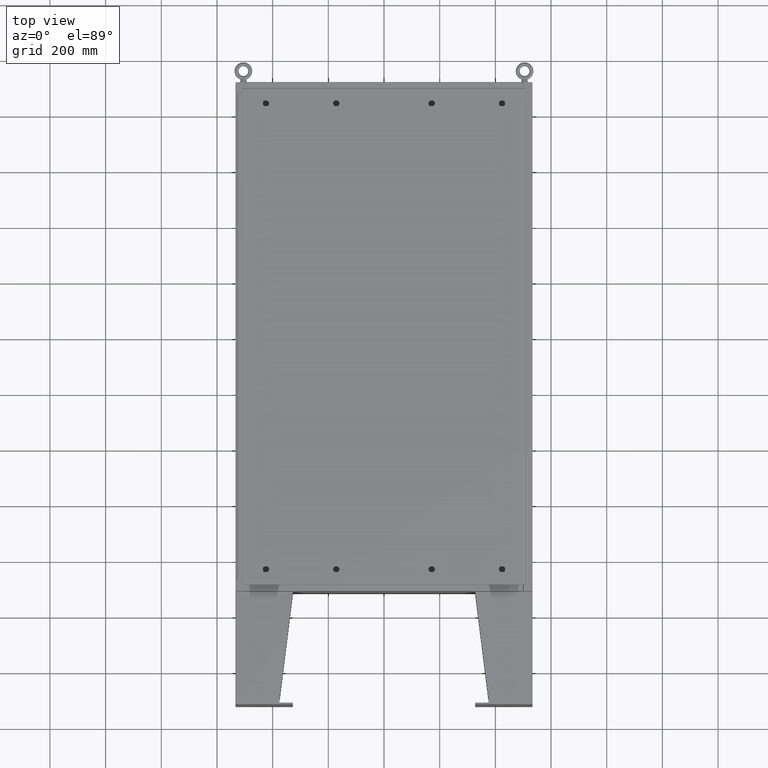
[diagram: clean part render]
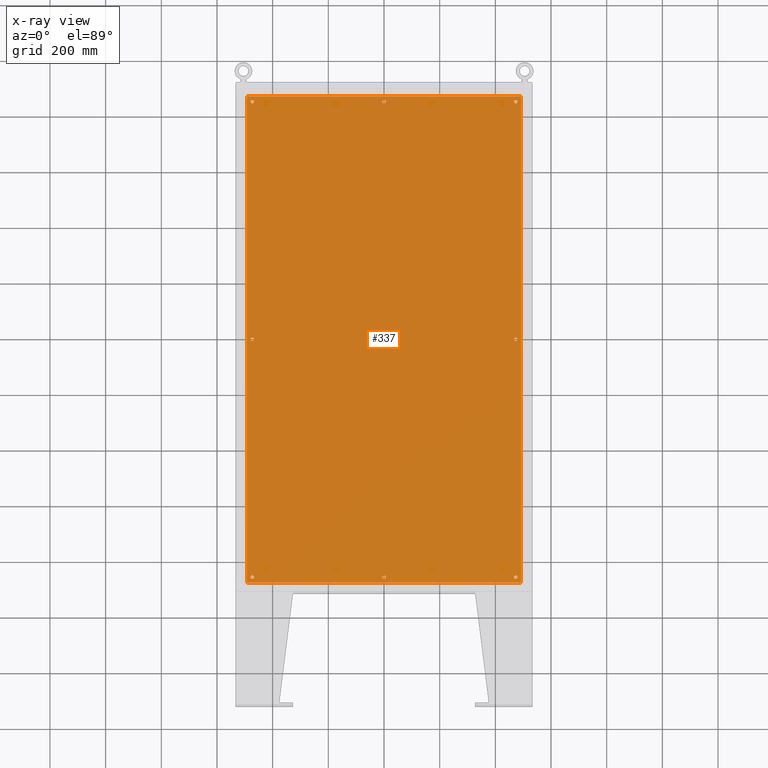
[diagram: x-ray — body ghosted, one internal face saturated and labeled with its STEP entity id]
A machine part, top view, then the same camera in x-ray: the body is ghosted and one INTERNAL B-rep face — a face not visible from any outside direction — is saturated and labeled: STEP entity #337.
In plain terms, the highlighted planar face has unit normal (0, 0, -1).
Its self-contained STEP definition (entity closure, byte-faithful):
#210 = DIRECTION ( 'NONE',  ( -0.0000000000000000000, -0.0000000000000000000, 1.000000000000000000 ) ) ;
#337 = ADVANCED_FACE ( 'NONE', ( #3136, #59577, #17625, #30404, #15894, #4846, #1402, #57837, #43306 ), #21735, .T. ) ;
#560 = EDGE_CURVE ( 'NONE', #31139, #26514, #35565, .T. ) ;
#753 = CARTESIAN_POINT ( 'NONE',  ( -18.87500000000000400, -33.62500000000000000, -0.1039999999999999800 ) ) ;
#1402 = FACE_BOUND ( 'NONE', #1783, .T. ) ;
#1491 = AXIS2_PLACEMENT_3D ( 'NONE', #31991, #70581, #37505 ) ;
#1529 = DIRECTION ( 'NONE',  ( -1.000000000000000000, 0.0000000000000000000, 0.0000000000000000000 ) ) ;
#1604 = DIRECTION ( 'NONE',  ( -1.000000000000000000, 0.0000000000000000000, 0.0000000000000000000 ) ) ;
#1783 = EDGE_LOOP ( 'NONE', ( #40355, #32800 ) ) ;
#1819 = ORIENTED_EDGE ( 'NONE', *, *, #11735, .T. ) ;
#2083 = VERTEX_POINT ( 'NONE', #55377 ) ;
#2174 = DIRECTION ( 'NONE',  ( -1.000000000000000000, 0.0000000000000000000, 0.0000000000000000000 ) ) ;
#3136 = FACE_BOUND ( 'NONE', #46908, .T. ) ;
#3148 = CARTESIAN_POINT ( 'NONE',  ( 18.62500000000000400, 3.731924441611933200E-015, -0.1039999999999999800 ) ) ;
#4038 = AXIS2_PLACEMENT_3D ( 'NONE', #52953, #20166, #58510 ) ;
#4846 = FACE_BOUND ( 'NONE', #34965, .T. ) ;
#5057 = EDGE_CURVE ( 'NONE', #63131, #35624, #30499, .T. ) ;
#5108 = EDGE_CURVE ( 'NONE', #50142, #2083, #54480, .T. ) ;
#5337 = CARTESIAN_POINT ( 'NONE',  ( 0.0000000000000000000, -33.62500000000000000, -0.1039999999999999800 ) ) ;
#6278 = CARTESIAN_POINT ( 'NONE',  ( -18.87500000000001100, 33.62500000000000000, -0.1039999999999999800 ) ) ;
#7345 = AXIS2_PLACEMENT_3D ( 'NONE', #40218, #63879, #1529 ) ;
#8387 = DIRECTION ( 'NONE',  ( -0.0000000000000000000, -0.0000000000000000000, 1.000000000000000000 ) ) ;
#9155 = CIRCLE ( 'NONE', #24565, 0.2500000000000008900 ) ;
#9239 = AXIS2_PLACEMENT_3D ( 'NONE', #13493, #51720, #18975 ) ;
#9494 = CARTESIAN_POINT ( 'NONE',  ( -19.38300000000000300, 34.38300000000000300, -0.1040000000000052800 ) ) ;
#10170 = EDGE_LOOP ( 'NONE', ( #12227, #42961 ) ) ;
#10752 = CARTESIAN_POINT ( 'NONE',  ( -18.37500000000000700, 33.62500000000000000, -0.1039999999999999800 ) ) ;
#11735 = EDGE_CURVE ( 'NONE', #23462, #13488, #43729, .T. ) ;
#12227 = ORIENTED_EDGE ( 'NONE', *, *, #34272, .T. ) ;
#12734 = VECTOR ( 'NONE', #49976, 39.37007874015748100 ) ;
#13044 = CIRCLE ( 'NONE', #37695, 0.2500000000000011700 ) ;
#13059 = CARTESIAN_POINT ( 'NONE',  ( 18.87500000000000400, -33.62500000000000000, -0.1039999999999999800 ) ) ;
#13485 = VERTEX_POINT ( 'NONE', #9494 ) ;
#13488 = VERTEX_POINT ( 'NONE', #19115 ) ;
#13493 = CARTESIAN_POINT ( 'NONE',  ( 18.62500000000000700, 33.62500000000000000, -0.1039999999999999800 ) ) ;
#13996 = EDGE_LOOP ( 'NONE', ( #1819, #32123 ) ) ;
#14427 = LINE ( 'NONE', #17246, #12734 ) ;
#14484 = AXIS2_PLACEMENT_3D ( 'NONE', #3148, #210, #33091 ) ;
#14925 = ORIENTED_EDGE ( 'NONE', *, *, #15774, .T. ) ;
#15071 = AXIS2_PLACEMENT_3D ( 'NONE', #47828, #15081, #53353 ) ;
#15081 = DIRECTION ( 'NONE',  ( -0.0000000000000000000, -0.0000000000000000000, 1.000000000000000000 ) ) ;
#15238 = AXIS2_PLACEMENT_3D ( 'NONE', #24956, #63449, #30497 ) ;
#15774 = EDGE_CURVE ( 'NONE', #35624, #63131, #13044, .T. ) ;
#15894 = FACE_BOUND ( 'NONE', #10170, .T. ) ;
#17246 = CARTESIAN_POINT ( 'NONE',  ( -19.50000000000000000, -34.38300000000000300, -0.1040000000000009400 ) ) ;
#17574 = CARTESIAN_POINT ( 'NONE',  ( 19.38299999999999900, 34.38300000000000300, -0.1040000000000009100 ) ) ;
#17612 = AXIS2_PLACEMENT_3D ( 'NONE', #27514, #64431, #2174 ) ;
#17625 = FACE_BOUND ( 'NONE', #13996, .T. ) ;
#18098 = CARTESIAN_POINT ( 'NONE',  ( 18.87500000000000400, 3.731924441611933200E-015, -0.1039999999999999800 ) ) ;
#18471 = CARTESIAN_POINT ( 'NONE',  ( -18.62500000000000700, 33.62500000000000000, -0.1039999999999999800 ) ) ;
#18952 = AXIS2_PLACEMENT_3D ( 'NONE', #70858, #34716, #30411 ) ;
#18975 = DIRECTION ( 'NONE',  ( -1.000000000000000000, 0.0000000000000000000, 0.0000000000000000000 ) ) ;
#19079 = CARTESIAN_POINT ( 'NONE',  ( 19.50000000000000000, 34.38299999999999600, -0.1040000000000009400 ) ) ;
#19115 = CARTESIAN_POINT ( 'NONE',  ( 18.37500000000000400, 3.762540611590617000E-015, -0.1039999999999999800 ) ) ;
#20166 = DIRECTION ( 'NONE',  ( -0.0000000000000000000, -0.0000000000000000000, 1.000000000000000000 ) ) ;
#20243 = DIRECTION ( 'NONE',  ( -0.0000000000000000000, -0.0000000000000000000, 1.000000000000000000 ) ) ;
#20339 = AXIS2_PLACEMENT_3D ( 'NONE', #28714, #67325, #34275 ) ;
#20742 = CIRCLE ( 'NONE', #1491, 0.2499999999999998600 ) ;
#20826 = CIRCLE ( 'NONE', #20339, 0.2500000000000008900 ) ;
#21389 = EDGE_CURVE ( 'NONE', #2083, #50142, #30296, .T. ) ;
#21735 = PLANE ( 'NONE',  #18952 ) ;
#21899 = ORIENTED_EDGE ( 'NONE', *, *, #55541, .T. ) ;
#22193 = EDGE_LOOP ( 'NONE', ( #60784, #28400, #60880, #43484 ) ) ;
#22250 = EDGE_CURVE ( 'NONE', #49748, #63739, #49855, .T. ) ;
#22430 = VERTEX_POINT ( 'NONE', #753 ) ;
#23462 = VERTEX_POINT ( 'NONE', #18098 ) ;
#23855 = DIRECTION ( 'NONE',  ( -1.000000000000000000, 0.0000000000000000000, 0.0000000000000000000 ) ) ;
#24083 = LINE ( 'NONE', #19079, #64571 ) ;
#24565 = AXIS2_PLACEMENT_3D ( 'NONE', #18471, #56725, #23855 ) ;
#24691 = CIRCLE ( 'NONE', #36649, 0.2500000000000008900 ) ;
#24956 = CARTESIAN_POINT ( 'NONE',  ( -18.62500000000000700, -33.62500000000000000, -0.1039999999999999800 ) ) ;
#26065 = VERTEX_POINT ( 'NONE', #6278 ) ;
#26514 = VERTEX_POINT ( 'NONE', #63945 ) ;
#27254 = AXIS2_PLACEMENT_3D ( 'NONE', #67378, #34326, #1604 ) ;
#27514 = CARTESIAN_POINT ( 'NONE',  ( -18.62500000000000400, -8.298848852119578500E-016, -0.1039999999999999800 ) ) ;
#28400 = ORIENTED_EDGE ( 'NONE', *, *, #48575, .F. ) ;
#28633 = CARTESIAN_POINT ( 'NONE',  ( 0.2500000000000011700, -33.62500000000000000, -0.1039999999999999800 ) ) ;
#28714 = CARTESIAN_POINT ( 'NONE',  ( -18.62500000000000400, -8.298848852119578500E-016, -0.1039999999999999800 ) ) ;
#30021 = ORIENTED_EDGE ( 'NONE', *, *, #21389, .T. ) ;
#30296 = CIRCLE ( 'NONE', #50707, 0.2499999999999987000 ) ;
#30404 = FACE_BOUND ( 'NONE', #64908, .T. ) ;
#30411 = DIRECTION ( 'NONE',  ( -1.000000000000000000, 0.0000000000000000000, -0.0000000000000000000 ) ) ;
#30497 = DIRECTION ( 'NONE',  ( -1.000000000000000000, 0.0000000000000000000, 0.0000000000000000000 ) ) ;
#30499 = CIRCLE ( 'NONE', #63787, 0.2500000000000011700 ) ;
#30882 = ORIENTED_EDGE ( 'NONE', *, *, #66239, .T. ) ;
#30891 = CIRCLE ( 'NONE', #51713, 0.2500000000000008900 ) ;
#31139 = VERTEX_POINT ( 'NONE', #46041 ) ;
#31615 = ORIENTED_EDGE ( 'NONE', *, *, #560, .T. ) ;
#31991 = CARTESIAN_POINT ( 'NONE',  ( 0.0000000000000000000, 33.62500000000000000, -0.1039999999999999800 ) ) ;
#32123 = ORIENTED_EDGE ( 'NONE', *, *, #58126, .T. ) ;
#32800 = ORIENTED_EDGE ( 'NONE', *, *, #36304, .T. ) ;
#33091 = DIRECTION ( 'NONE',  ( -1.000000000000000000, 0.0000000000000000000, 0.0000000000000000000 ) ) ;
#33100 = EDGE_CURVE ( 'NONE', #63739, #13485, #24083, .T. ) ;
#34272 = EDGE_CURVE ( 'NONE', #43471, #22430, #47966, .T. ) ;
#34275 = DIRECTION ( 'NONE',  ( -1.000000000000000000, 0.0000000000000000000, 0.0000000000000000000 ) ) ;
#34326 = DIRECTION ( 'NONE',  ( -0.0000000000000000000, -0.0000000000000000000, 1.000000000000000000 ) ) ;
#34716 = DIRECTION ( 'NONE',  ( 0.0000000000000000000, 0.0000000000000000000, -1.000000000000000000 ) ) ;
#34965 = EDGE_LOOP ( 'NONE', ( #45694, #30021 ) ) ;
#34995 = CARTESIAN_POINT ( 'NONE',  ( 18.62500000000000700, -33.62500000000000000, -0.1039999999999999800 ) ) ;
#35007 = CARTESIAN_POINT ( 'NONE',  ( -0.2500000000000011700, -33.62500000000000000, -0.1039999999999999800 ) ) ;
#35374 = VECTOR ( 'NONE', #53113, 39.37007874015748100 ) ;
#35565 = CIRCLE ( 'NONE', #17612, 0.2500000000000008900 ) ;
#35624 = VERTEX_POINT ( 'NONE', #28633 ) ;
#36188 = EDGE_CURVE ( 'NONE', #22430, #43471, #59019, .T. ) ;
#36304 = EDGE_CURVE ( 'NONE', #61613, #47394, #53819, .T. ) ;
#36649 = AXIS2_PLACEMENT_3D ( 'NONE', #53052, #20243, #58597 ) ;
#37452 = VERTEX_POINT ( 'NONE', #59873 ) ;
#37505 = DIRECTION ( 'NONE',  ( -1.000000000000000000, 0.0000000000000000000, 0.0000000000000000000 ) ) ;
#37537 = EDGE_LOOP ( 'NONE', ( #30882, #57571 ) ) ;
#37695 = AXIS2_PLACEMENT_3D ( 'NONE', #56822, #49563, #50755 ) ;
#37832 = ORIENTED_EDGE ( 'NONE', *, *, #58811, .T. ) ;
#40218 = CARTESIAN_POINT ( 'NONE',  ( 18.62500000000000700, -33.62500000000000000, -0.1039999999999999800 ) ) ;
#40355 = ORIENTED_EDGE ( 'NONE', *, *, #67761, .T. ) ;
#41155 = CARTESIAN_POINT ( 'NONE',  ( 18.62500000000000400, 3.731924441611933200E-015, -0.1039999999999999800 ) ) ;
#41705 = CARTESIAN_POINT ( 'NONE',  ( -18.37500000000000700, -33.62500000000000000, -0.1039999999999999800 ) ) ;
#42961 = ORIENTED_EDGE ( 'NONE', *, *, #36188, .T. ) ;
#43306 = FACE_OUTER_BOUND ( 'NONE', #22193, .T. ) ;
#43471 = VERTEX_POINT ( 'NONE', #41705 ) ;
#43484 = ORIENTED_EDGE ( 'NONE', *, *, #22250, .F. ) ;
#43729 = CIRCLE ( 'NONE', #14484, 0.2500000000000008900 ) ;
#44400 = EDGE_CURVE ( 'NONE', #26514, #31139, #20826, .T. ) ;
#45253 = EDGE_LOOP ( 'NONE', ( #21899, #37832 ) ) ;
#45694 = ORIENTED_EDGE ( 'NONE', *, *, #5108, .T. ) ;
#46041 = CARTESIAN_POINT ( 'NONE',  ( -18.37500000000000400, -8.298848852119578500E-016, -0.1039999999999999800 ) ) ;
#46328 = LINE ( 'NONE', #50881, #59218 ) ;
#46576 = DIRECTION ( 'NONE',  ( -1.000000000000000000, 0.0000000000000000000, 0.0000000000000000000 ) ) ;
#46908 = EDGE_LOOP ( 'NONE', ( #14925, #66668 ) ) ;
#46909 = VERTEX_POINT ( 'NONE', #49425 ) ;
#47394 = VERTEX_POINT ( 'NONE', #70086 ) ;
#47828 = CARTESIAN_POINT ( 'NONE',  ( 0.0000000000000000000, 33.62500000000000000, -0.1039999999999999800 ) ) ;
#47966 = CIRCLE ( 'NONE', #15238, 0.2499999999999987000 ) ;
#48498 = DIRECTION ( 'NONE',  ( -1.000000000000000000, 0.0000000000000000000, 0.0000000000000000000 ) ) ;
#48575 = EDGE_CURVE ( 'NONE', #13485, #46909, #46328, .T. ) ;
#49425 = CARTESIAN_POINT ( 'NONE',  ( -19.38300000000000300, -34.38300000000000300, -0.1040000000000009400 ) ) ;
#49563 = DIRECTION ( 'NONE',  ( -0.0000000000000000000, -0.0000000000000000000, 1.000000000000000000 ) ) ;
#49748 = VERTEX_POINT ( 'NONE', #69605 ) ;
#49855 = LINE ( 'NONE', #68763, #35374 ) ;
#49976 = DIRECTION ( 'NONE',  ( 1.000000000000000000, -0.0000000000000000000, -0.0000000000000000000 ) ) ;
#50142 = VERTEX_POINT ( 'NONE', #13059 ) ;
#50655 = DIRECTION ( 'NONE',  ( -1.000000000000000000, 0.0000000000000000000, 0.0000000000000000000 ) ) ;
#50707 = AXIS2_PLACEMENT_3D ( 'NONE', #34995, #61631, #50655 ) ;
#50755 = DIRECTION ( 'NONE',  ( -1.000000000000000000, 0.0000000000000000000, 0.0000000000000000000 ) ) ;
#50881 = CARTESIAN_POINT ( 'NONE',  ( -19.38300000000000300, 34.38300000000000300, -0.1040000000000052800 ) ) ;
#51697 = VERTEX_POINT ( 'NONE', #66714 ) ;
#51713 = AXIS2_PLACEMENT_3D ( 'NONE', #41155, #8387, #46576 ) ;
#51720 = DIRECTION ( 'NONE',  ( -0.0000000000000000000, -0.0000000000000000000, 1.000000000000000000 ) ) ;
#51829 = DIRECTION ( 'NONE',  ( -1.000000000000000000, -0.0000000000000000000, -0.0000000000000000000 ) ) ;
#52953 = CARTESIAN_POINT ( 'NONE',  ( 18.62500000000000700, 33.62500000000000000, -0.1039999999999999800 ) ) ;
#52973 = CIRCLE ( 'NONE', #9239, 0.2499999999999987000 ) ;
#53042 = ORIENTED_EDGE ( 'NONE', *, *, #44400, .T. ) ;
#53052 = CARTESIAN_POINT ( 'NONE',  ( -18.62500000000000700, 33.62500000000000000, -0.1039999999999999800 ) ) ;
#53113 = DIRECTION ( 'NONE',  ( 0.0000000000000000000, 1.000000000000000000, 0.0000000000000000000 ) ) ;
#53353 = DIRECTION ( 'NONE',  ( -1.000000000000000000, 0.0000000000000000000, 0.0000000000000000000 ) ) ;
#53819 = CIRCLE ( 'NONE', #4038, 0.2499999999999987000 ) ;
#54480 = CIRCLE ( 'NONE', #7345, 0.2499999999999987000 ) ;
#55079 = CARTESIAN_POINT ( 'NONE',  ( 18.37500000000000700, 33.62500000000000000, -0.1039999999999999800 ) ) ;
#55377 = CARTESIAN_POINT ( 'NONE',  ( 18.37500000000000700, -33.62500000000000000, -0.1039999999999999800 ) ) ;
#55541 = EDGE_CURVE ( 'NONE', #70861, #26065, #9155, .T. ) ;
#56725 = DIRECTION ( 'NONE',  ( -0.0000000000000000000, -0.0000000000000000000, 1.000000000000000000 ) ) ;
#56822 = CARTESIAN_POINT ( 'NONE',  ( 0.0000000000000000000, -33.62500000000000000, -0.1039999999999999800 ) ) ;
#57571 = ORIENTED_EDGE ( 'NONE', *, *, #60493, .T. ) ;
#57837 = FACE_BOUND ( 'NONE', #45253, .T. ) ;
#58126 = EDGE_CURVE ( 'NONE', #13488, #23462, #30891, .T. ) ;
#58510 = DIRECTION ( 'NONE',  ( -1.000000000000000000, 0.0000000000000000000, 0.0000000000000000000 ) ) ;
#58597 = DIRECTION ( 'NONE',  ( -1.000000000000000000, 0.0000000000000000000, 0.0000000000000000000 ) ) ;
#58811 = EDGE_CURVE ( 'NONE', #26065, #70861, #24691, .T. ) ;
#59019 = CIRCLE ( 'NONE', #27254, 0.2499999999999987000 ) ;
#59218 = VECTOR ( 'NONE', #62043, 39.37007874015748100 ) ;
#59577 = FACE_BOUND ( 'NONE', #37537, .T. ) ;
#59873 = CARTESIAN_POINT ( 'NONE',  ( 0.2499999999999998600, 33.62500000000000000, -0.1039999999999999800 ) ) ;
#60493 = EDGE_CURVE ( 'NONE', #51697, #37452, #20742, .T. ) ;
#60784 = ORIENTED_EDGE ( 'NONE', *, *, #68225, .F. ) ;
#60880 = ORIENTED_EDGE ( 'NONE', *, *, #33100, .F. ) ;
#61023 = CIRCLE ( 'NONE', #15071, 0.2499999999999998600 ) ;
#61613 = VERTEX_POINT ( 'NONE', #55079 ) ;
#61631 = DIRECTION ( 'NONE',  ( -0.0000000000000000000, -0.0000000000000000000, 1.000000000000000000 ) ) ;
#62043 = DIRECTION ( 'NONE',  ( 0.0000000000000000000, -1.000000000000000000, 0.0000000000000000000 ) ) ;
#62403 = DIRECTION ( 'NONE',  ( -0.0000000000000000000, -0.0000000000000000000, 1.000000000000000000 ) ) ;
#63131 = VERTEX_POINT ( 'NONE', #35007 ) ;
#63449 = DIRECTION ( 'NONE',  ( -0.0000000000000000000, -0.0000000000000000000, 1.000000000000000000 ) ) ;
#63739 = VERTEX_POINT ( 'NONE', #17574 ) ;
#63787 = AXIS2_PLACEMENT_3D ( 'NONE', #5337, #62403, #48498 ) ;
#63879 = DIRECTION ( 'NONE',  ( -0.0000000000000000000, -0.0000000000000000000, 1.000000000000000000 ) ) ;
#63945 = CARTESIAN_POINT ( 'NONE',  ( -18.87500000000000400, -7.992687152332741600E-016, -0.1039999999999999800 ) ) ;
#64431 = DIRECTION ( 'NONE',  ( -0.0000000000000000000, -0.0000000000000000000, 1.000000000000000000 ) ) ;
#64571 = VECTOR ( 'NONE', #51829, 39.37007874015748100 ) ;
#64908 = EDGE_LOOP ( 'NONE', ( #31615, #53042 ) ) ;
#66239 = EDGE_CURVE ( 'NONE', #37452, #51697, #61023, .T. ) ;
#66668 = ORIENTED_EDGE ( 'NONE', *, *, #5057, .T. ) ;
#66714 = CARTESIAN_POINT ( 'NONE',  ( -0.2499999999999998600, 33.62500000000000000, -0.1039999999999999800 ) ) ;
#67325 = DIRECTION ( 'NONE',  ( -0.0000000000000000000, -0.0000000000000000000, 1.000000000000000000 ) ) ;
#67378 = CARTESIAN_POINT ( 'NONE',  ( -18.62500000000000700, -33.62500000000000000, -0.1039999999999999800 ) ) ;
#67761 = EDGE_CURVE ( 'NONE', #47394, #61613, #52973, .T. ) ;
#68225 = EDGE_CURVE ( 'NONE', #46909, #49748, #14427, .T. ) ;
#68763 = CARTESIAN_POINT ( 'NONE',  ( 19.38299999999999900, -34.38300000000000300, -0.1040000000000009100 ) ) ;
#69605 = CARTESIAN_POINT ( 'NONE',  ( 19.38299999999999900, -34.38300000000000300, -0.1040000000000009100 ) ) ;
#70086 = CARTESIAN_POINT ( 'NONE',  ( 18.87500000000000400, 33.62500000000000000, -0.1039999999999999800 ) ) ;
#70581 = DIRECTION ( 'NONE',  ( -0.0000000000000000000, -0.0000000000000000000, 1.000000000000000000 ) ) ;
#70858 = CARTESIAN_POINT ( 'NONE',  ( 0.0000000000000000000, 0.0000000000000000000, -0.1039999999999999800 ) ) ;
#70861 = VERTEX_POINT ( 'NONE', #10752 ) ;